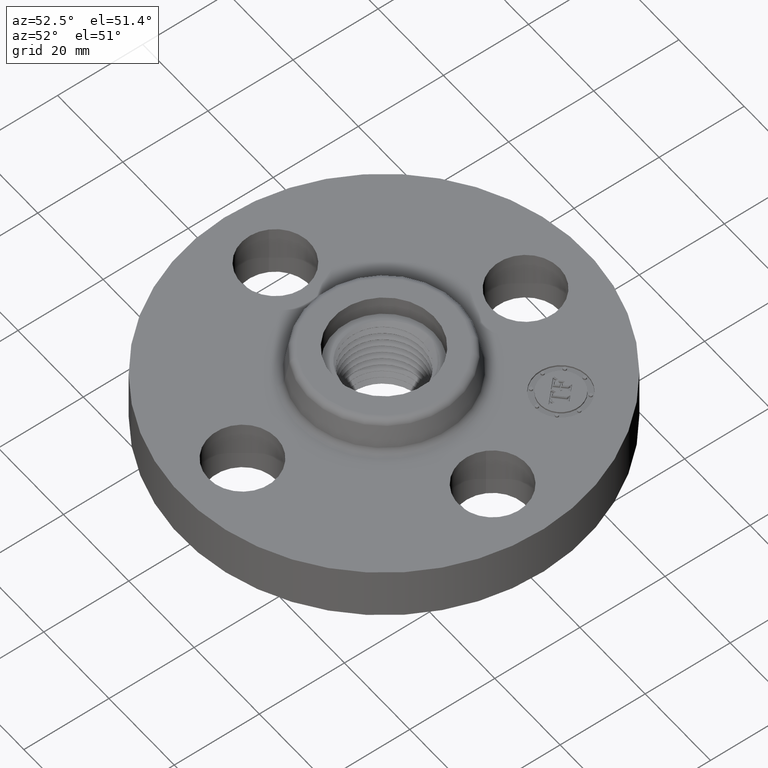
[diagram: clean part render]
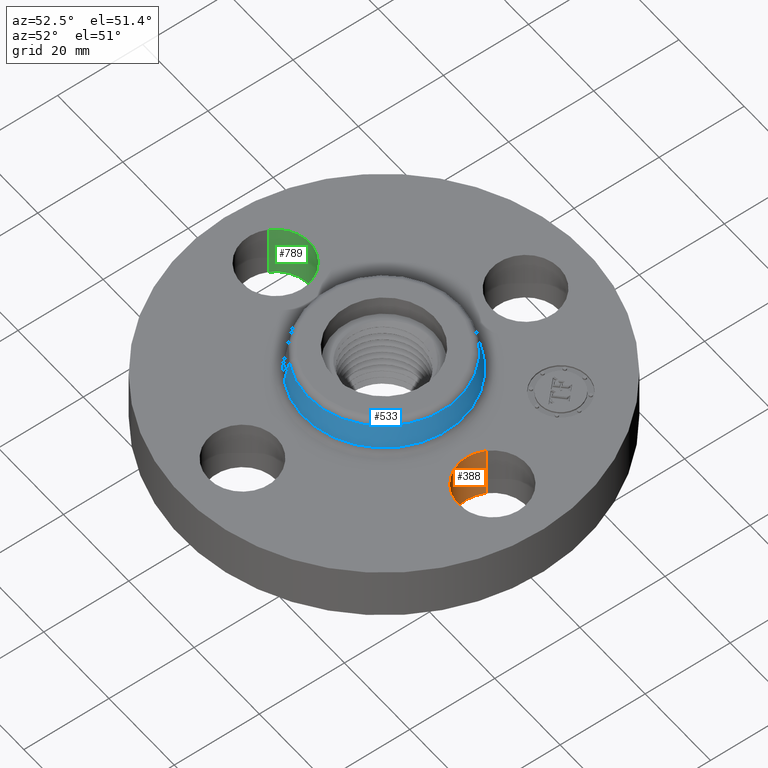
[diagram: same view with three faces highlighted in distinct colors, each labeled with its STEP entity id]
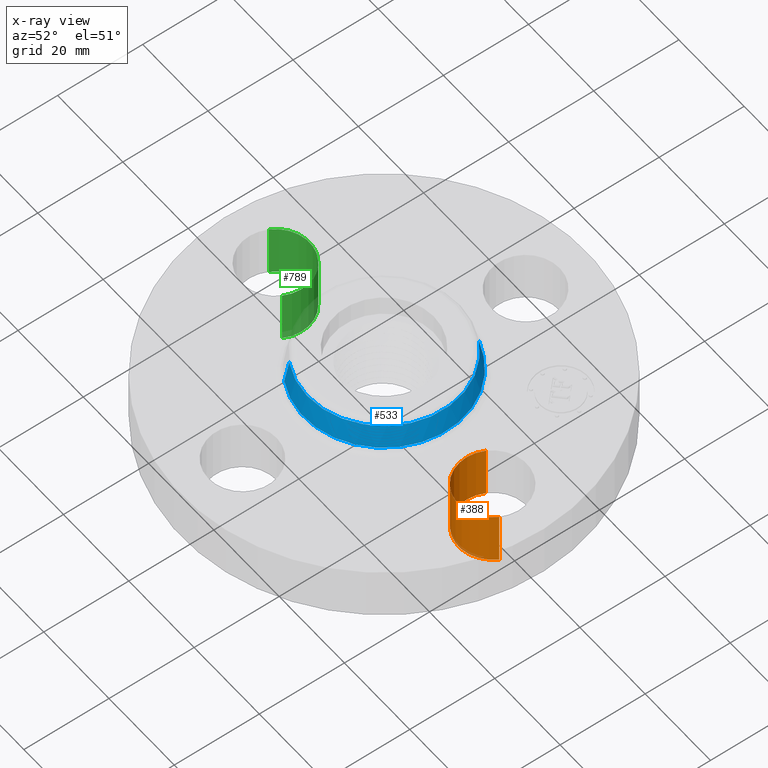
[diagram: x-ray of the same camera — body ghosted, the three highlighted faces saturated]
A machine part, auxiliary view with three faces highlighted in distinct colors.
The next image is the same camera in x-ray (body ghosted, the three faces saturated) — at least one of them is partly hidden behind the body in this view.
Their STEP definitions:

[orange] entity #388 — the highlighted cylindrical surface (partial cylindrical patch) has radius 8.001 mm, axis along (0, -0, -1).
#335=AXIS2_PLACEMENT_3D('Cylinder Axis2P3D',#332,#333,#334) ;
#374=AXIS2_PLACEMENT_3D('Circle Axis2P3D',#372,#373,$) ;
#379=AXIS2_PLACEMENT_3D('Circle Axis2P3D',#377,#378,$) ;
#332=CARTESIAN_POINT('Axis2P3D Location',(1.31000000001,0.,0.496062992128)) ;
#337=CARTESIAN_POINT('Line Origine',(1.03356149301,0.151019044661,0.250000000001)) ;
#341=CARTESIAN_POINT('Vertex',(1.03356149301,0.151019044661,0.)) ;
#343=CARTESIAN_POINT('Vertex',(1.03356149301,0.151019044661,0.500000000002)) ;
#350=CARTESIAN_POINT('Vertex',(1.586438507,-0.151019044661,0.)) ;
#353=CARTESIAN_POINT('Line Origine',(1.586438507,-0.151019044661,0.250000000001)) ;
#357=CARTESIAN_POINT('Vertex',(1.586438507,-0.151019044661,0.500000000002)) ;
#372=CARTESIAN_POINT('Axis2P3D Location',(1.31000000001,0.,0.)) ;
#377=CARTESIAN_POINT('Axis2P3D Location',(1.31000000001,0.,0.500000000002)) ;
#333=DIRECTION('Axis2P3D Direction',(0.,-0.,-0.0393700787402)) ;
#334=DIRECTION('Axis2P3D XDirection',(0.0345504945626,-0.0188750212049,0.)) ;
#338=DIRECTION('Vector Direction',(0.,0.,-0.0393700787402)) ;
#354=DIRECTION('Vector Direction',(0.,0.,-0.0393700787402)) ;
#373=DIRECTION('Axis2P3D Direction',(0.,-0.,-0.0393700787402)) ;
#378=DIRECTION('Axis2P3D Direction',(0.,-0.,-0.0393700787402)) ;
#339=VECTOR('Line Direction',#338,0.0393700787402) ;
#355=VECTOR('Line Direction',#354,0.0393700787402) ;
#383=ORIENTED_EDGE('',*,*,#359,.F.) ;
#384=ORIENTED_EDGE('',*,*,#376,.T.) ;
#385=ORIENTED_EDGE('',*,*,#345,.T.) ;
#386=ORIENTED_EDGE('',*,*,#381,.F.) ;
#388=ADVANCED_FACE('PartBody',(#387),#336,.F.) ;
#375=CIRCLE('generated circle',#374,0.315000000001) ;
#380=CIRCLE('generated circle',#379,0.315000000001) ;
#336=CYLINDRICAL_SURFACE('generated cylinder',#335,0.315000000001) ;
#345=EDGE_CURVE('',#342,#344,#340,.F.) ;
#359=EDGE_CURVE('',#351,#358,#356,.F.) ;
#376=EDGE_CURVE('',#351,#342,#375,.T.) ;
#381=EDGE_CURVE('',#358,#344,#380,.T.) ;
#382=EDGE_LOOP('',(#383,#384,#385,#386)) ;
#387=FACE_OUTER_BOUND('',#382,.T.) ;
#340=LINE('Line',#337,#339) ;
#356=LINE('Line',#353,#355) ;
#342=VERTEX_POINT('',#341) ;
#344=VERTEX_POINT('',#343) ;
#351=VERTEX_POINT('',#350) ;
#358=VERTEX_POINT('',#357) ;

[blue] entity #533 — the highlighted conical surface has half-angle 10 deg.
#469=AXIS2_PLACEMENT_3D('Circle Axis2P3D',#467,#468,$) ;
#506=AXIS2_PLACEMENT_3D('Cone Axis2P3D',#503,#504,#505) ;
#517=AXIS2_PLACEMENT_3D('Circle Axis2P3D',#515,#516,$) ;
#464=CARTESIAN_POINT('Vertex',(0.355377782267,0.650514667009,0.549581109342)) ;
#467=CARTESIAN_POINT('Axis2P3D Location',(0.,0.,0.549581109342)) ;
#471=CARTESIAN_POINT('Vertex',(-0.355377782267,-0.650514667009,0.549581109342)) ;
#503=CARTESIAN_POINT('Axis2P3D Location',(0.,0.,0.760418890663)) ;
#508=CARTESIAN_POINT('Line Origine',(0.346466127012,0.634201991484,0.655000000003)) ;
#512=CARTESIAN_POINT('Vertex',(0.337554471756,0.617889315958,0.760418890663)) ;
#515=CARTESIAN_POINT('Axis2P3D Location',(0.,0.,0.760418890663)) ;
#519=CARTESIAN_POINT('Vertex',(-0.337554471756,-0.617889315958,0.760418890663)) ;
#522=CARTESIAN_POINT('Line Origine',(-0.346466127012,-0.634201991484,0.655000000003)) ;
#468=DIRECTION('Axis2P3D Direction',(0.,0.,-0.0393700787402)) ;
#504=DIRECTION('Axis2P3D Direction',(0.,0.,-0.0393700787402)) ;
#505=DIRECTION('Axis2P3D XDirection',(-0.0188750212049,-0.0345504945626,0.)) ;
#509=DIRECTION('Vector Direction',(0.00327761303565,0.00599963041829,-0.03877195878)) ;
#516=DIRECTION('Axis2P3D Direction',(0.,0.,-0.0393700787402)) ;
#523=DIRECTION('Vector Direction',(-0.00327761303565,-0.00599963041829,-0.03877195878)) ;
#510=VECTOR('Line Direction',#509,0.0393700787402) ;
#524=VECTOR('Line Direction',#523,0.0393700787402) ;
#528=ORIENTED_EDGE('',*,*,#473,.F.) ;
#529=ORIENTED_EDGE('',*,*,#514,.T.) ;
#530=ORIENTED_EDGE('',*,*,#521,.T.) ;
#531=ORIENTED_EDGE('',*,*,#526,.F.) ;
#533=ADVANCED_FACE('PartBody',(#532),#507,.T.) ;
#470=CIRCLE('generated circle',#469,0.741257512693) ;
#518=CIRCLE('generated circle',#517,0.704081123293) ;
#507=CONICAL_SURFACE('Cone',#506,0.704081123293,0.174532925199) ;
#473=EDGE_CURVE('',#465,#472,#470,.T.) ;
#514=EDGE_CURVE('',#465,#513,#511,.F.) ;
#521=EDGE_CURVE('',#513,#520,#518,.T.) ;
#526=EDGE_CURVE('',#472,#520,#525,.F.) ;
#527=EDGE_LOOP('',(#528,#529,#530,#531)) ;
#532=FACE_OUTER_BOUND('',#527,.T.) ;
#511=LINE('Line',#508,#510) ;
#525=LINE('Line',#522,#524) ;
#465=VERTEX_POINT('',#464) ;
#472=VERTEX_POINT('',#471) ;
#513=VERTEX_POINT('',#512) ;
#520=VERTEX_POINT('',#519) ;

[green] entity #789 — the highlighted cylindrical surface (partial cylindrical patch) has radius 8.001 mm, axis along (-0, 0, -1).
#678=AXIS2_PLACEMENT_3D('Circle Axis2P3D',#676,#677,$) ;
#750=AXIS2_PLACEMENT_3D('Cylinder Axis2P3D',#747,#748,#749) ;
#780=AXIS2_PLACEMENT_3D('Circle Axis2P3D',#778,#779,$) ;
#671=CARTESIAN_POINT('Vertex',(-1.03356149301,-0.151019044661,0.)) ;
#673=CARTESIAN_POINT('Vertex',(-1.586438507,0.151019044661,0.)) ;
#676=CARTESIAN_POINT('Axis2P3D Location',(-1.31000000001,0.,0.)) ;
#747=CARTESIAN_POINT('Axis2P3D Location',(-1.31000000001,-1.60428730689E-016,0.496062992128)) ;
#752=CARTESIAN_POINT('Line Origine',(-1.03356149301,-0.151019044661,0.250000000001)) ;
#756=CARTESIAN_POINT('Vertex',(-1.03356149301,-0.151019044661,0.500000000002)) ;
#759=CARTESIAN_POINT('Line Origine',(-1.586438507,0.151019044661,0.250000000001)) ;
#763=CARTESIAN_POINT('Vertex',(-1.586438507,0.151019044661,0.500000000002)) ;
#778=CARTESIAN_POINT('Axis2P3D Location',(-1.31000000001,-1.60428730689E-016,0.500000000002)) ;
#677=DIRECTION('Axis2P3D Direction',(0.,0.,-0.0393700787402)) ;
#748=DIRECTION('Axis2P3D Direction',(-0.,0.,-0.0393700787402)) ;
#749=DIRECTION('Axis2P3D XDirection',(-0.0345504945626,0.0188750212049,0.)) ;
#753=DIRECTION('Vector Direction',(0.,0.,-0.0393700787402)) ;
#760=DIRECTION('Vector Direction',(0.,0.,-0.0393700787402)) ;
#779=DIRECTION('Axis2P3D Direction',(-0.,0.,-0.0393700787402)) ;
#754=VECTOR('Line Direction',#753,0.0393700787402) ;
#761=VECTOR('Line Direction',#760,0.0393700787402) ;
#784=ORIENTED_EDGE('',*,*,#765,.F.) ;
#785=ORIENTED_EDGE('',*,*,#680,.T.) ;
#786=ORIENTED_EDGE('',*,*,#758,.T.) ;
#787=ORIENTED_EDGE('',*,*,#782,.F.) ;
#789=ADVANCED_FACE('PartBody',(#788),#751,.F.) ;
#679=CIRCLE('generated circle',#678,0.315000000001) ;
#781=CIRCLE('generated circle',#780,0.315000000001) ;
#751=CYLINDRICAL_SURFACE('generated cylinder',#750,0.315000000001) ;
#680=EDGE_CURVE('',#674,#672,#679,.T.) ;
#758=EDGE_CURVE('',#672,#757,#755,.F.) ;
#765=EDGE_CURVE('',#674,#764,#762,.F.) ;
#782=EDGE_CURVE('',#764,#757,#781,.T.) ;
#783=EDGE_LOOP('',(#784,#785,#786,#787)) ;
#788=FACE_OUTER_BOUND('',#783,.T.) ;
#755=LINE('Line',#752,#754) ;
#762=LINE('Line',#759,#761) ;
#672=VERTEX_POINT('',#671) ;
#674=VERTEX_POINT('',#673) ;
#757=VERTEX_POINT('',#756) ;
#764=VERTEX_POINT('',#763) ;